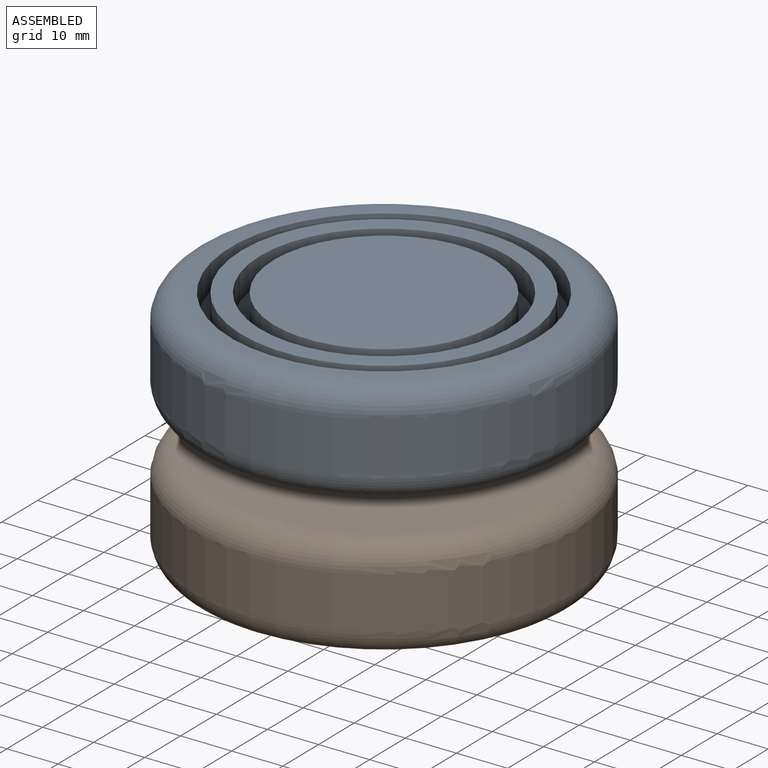
[diagram: assembled view]
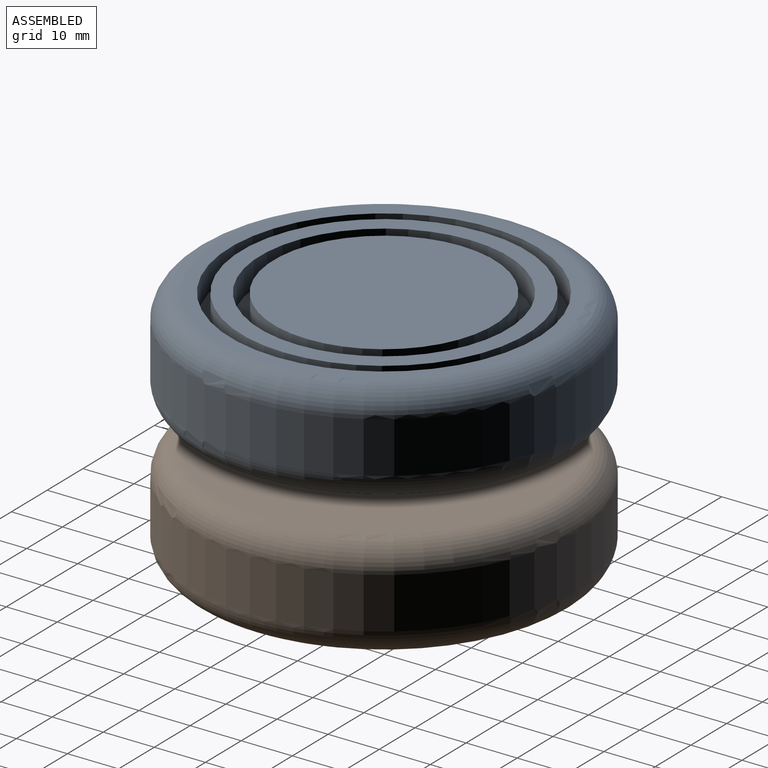
[diagram: assembled view, second angle]
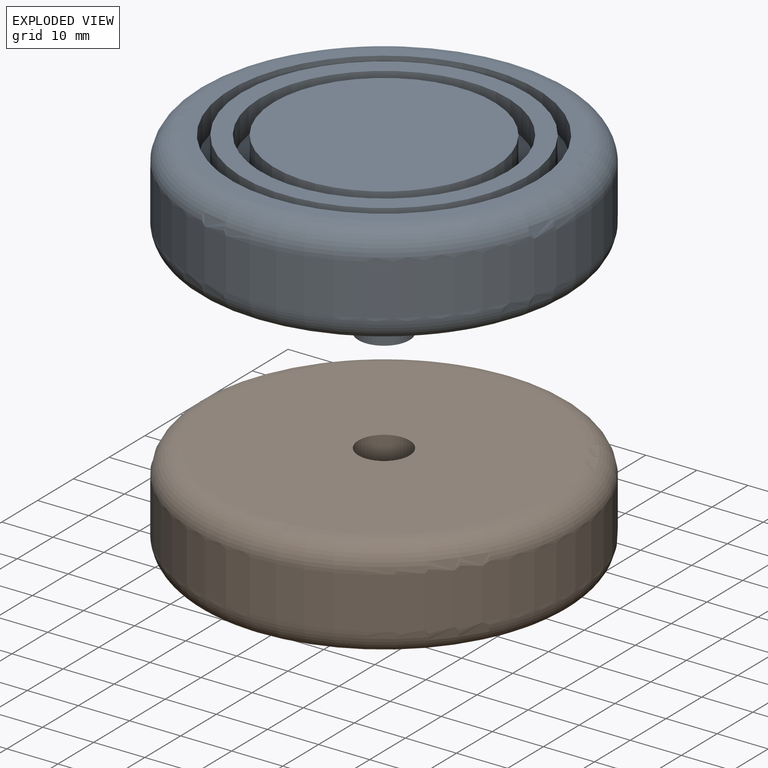
[diagram: exploded view]
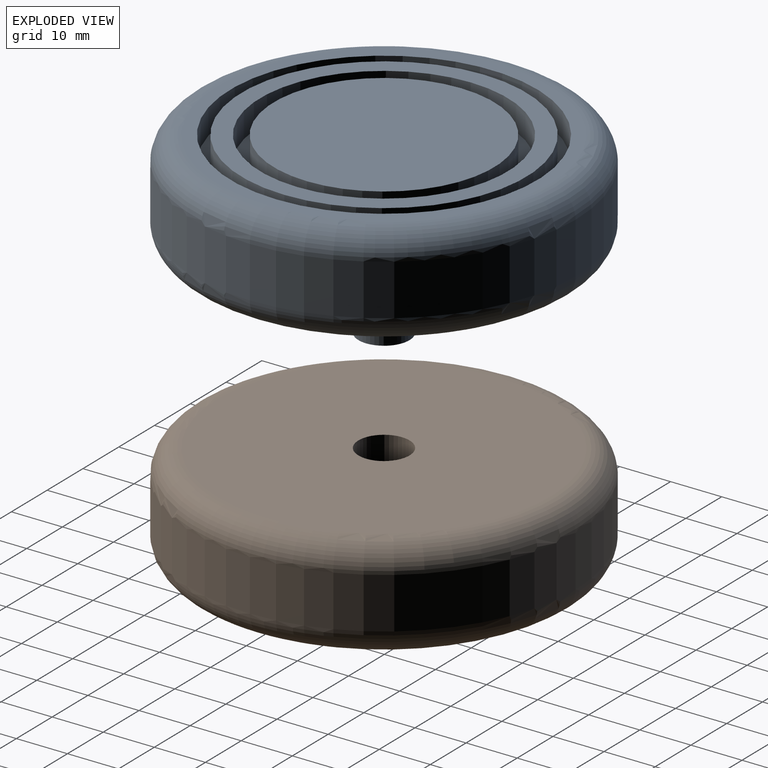
[diagram: exploded view, second angle]
ASSEMBLY  parts=2 mates=2
PART A: 15 faces, bbox 81.2x81.2x35 mm
  f0: cylinder r=37.5mm len=75mm, axis (0,0,-1), area 2356.2mm2, adj f5,f6
  f1: plane 65x65mm, normal (0,0,1), area 489.6mm2, adj f6,f7
  f2: plane 65x65mm, normal (0,0,-1), area 3239.8mm2, adj f3,f5
  f3: cylinder r=5mm len=15mm, axis (0,0,1), area 471.2mm2, adj f2,f4
  f4: plane 10x10mm, normal (0,0,-1), area 78.5mm2, adj f3
  f5: torus R=32.5mm, axis (0,0,1), area 1760.9mm2, adj f0,f2
  f6: torus R=32.5mm, axis (0,0,1), area 1760.9mm2, adj f0,f1
  f7: cylinder r=30.01mm len=60.01mm, axis (0,0,1), area 942.7mm2, adj f1,f8
  f8: plane 60.01x60.01mm, normal (0,0,1), area 389.9mm2, adj f7,f9
  f9: cylinder r=27.86mm len=55.73mm, axis (0,0,-1), area 875.3mm2, adj f8,f10
  f10: plane 55.73x55.73mm, normal (0,0,1), area 593.1mm2, adj f9,f11
  f11: cylinder r=24.24mm len=48.48mm, axis (0,0,1), area 761.5mm2, adj f10,f12
  f12: plane 48.48x48.48mm, normal (0,0,1), area 386.5mm2, adj f11,f13
  f13: cylinder r=21.55mm len=43.11mm, axis (0,0,-1), area 677.1mm2, adj f12,f14
  f14: plane 43.11x43.11mm, normal (0,0,1), area 1459.4mm2, adj f13
PART B: 15 faces, bbox 81.2x81.2x20 mm
  f0: cylinder r=37.5mm len=75mm, axis (0,0,-1), area 2356.2mm2, adj f5,f6
  f1: plane 65x65mm, normal (0,0,1), area 489.6mm2, adj f6,f7
  f2: plane 65x65mm, normal (0,0,-1), area 3239.8mm2, adj f3,f5
  f3: cylinder r=5mm len=10mm, axis (0,0,-1), area 235.6mm2, adj f2,f4
  f4: plane 10x10mm, normal (0,0,-1), area 78.5mm2, adj f3
  f5: torus R=32.5mm, axis (0,0,1), area 1760.9mm2, adj f0,f2
  f6: torus R=32.5mm, axis (0,0,1), area 1760.9mm2, adj f0,f1
  f7: cylinder r=30.01mm len=60.01mm, axis (0,0,1), area 942.7mm2, adj f1,f8
  f8: plane 60.01x60.01mm, normal (0,0,1), area 389.9mm2, adj f7,f9
  f9: cylinder r=27.86mm len=55.73mm, axis (0,0,-1), area 875.3mm2, adj f8,f10
  f10: plane 55.73x55.73mm, normal (0,0,1), area 593.1mm2, adj f9,f11
  f11: cylinder r=24.24mm len=48.48mm, axis (0,0,1), area 761.5mm2, adj f10,f12
  f12: plane 48.48x48.48mm, normal (0,0,1), area 386.5mm2, adj f11,f13
  f13: cylinder r=21.55mm len=43.11mm, axis (0,0,-1), area 677.1mm2, adj f12,f14
  f14: plane 43.11x43.11mm, normal (0,0,1), area 1459.4mm2, adj f13
PLACE A t=(-3.46,17.52,41.91)mm
PLACE B rot(axis=(0,-1,0),180deg) t=(-3.46,17.52,34.41)mm
MATE slider A.f3 <-> B.f0  axis (0,0,-1) through (-3.46,17.52,41.91)mm
MATE planar B.f3 <-> A.f3  axis (0,0,1) through (-3.46,17.52,26.91)mm
